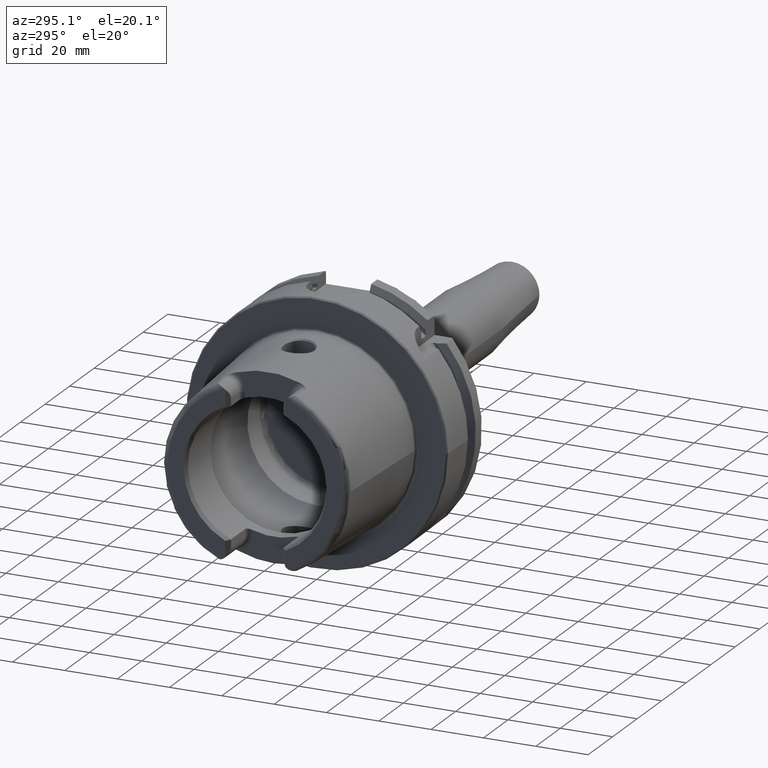
[diagram: clean part render]
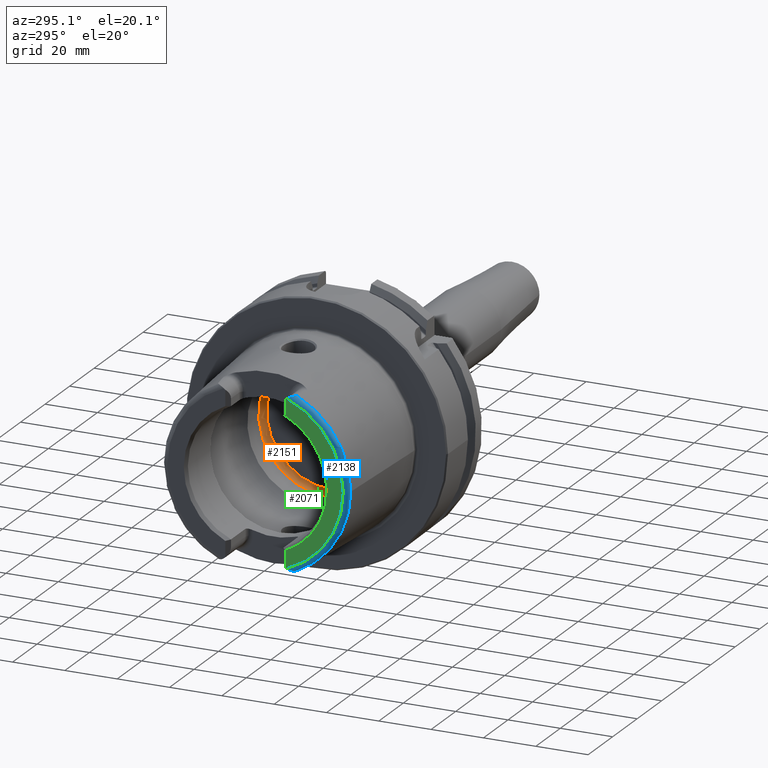
[diagram: same view with three faces highlighted in distinct colors, each labeled with its STEP entity id]
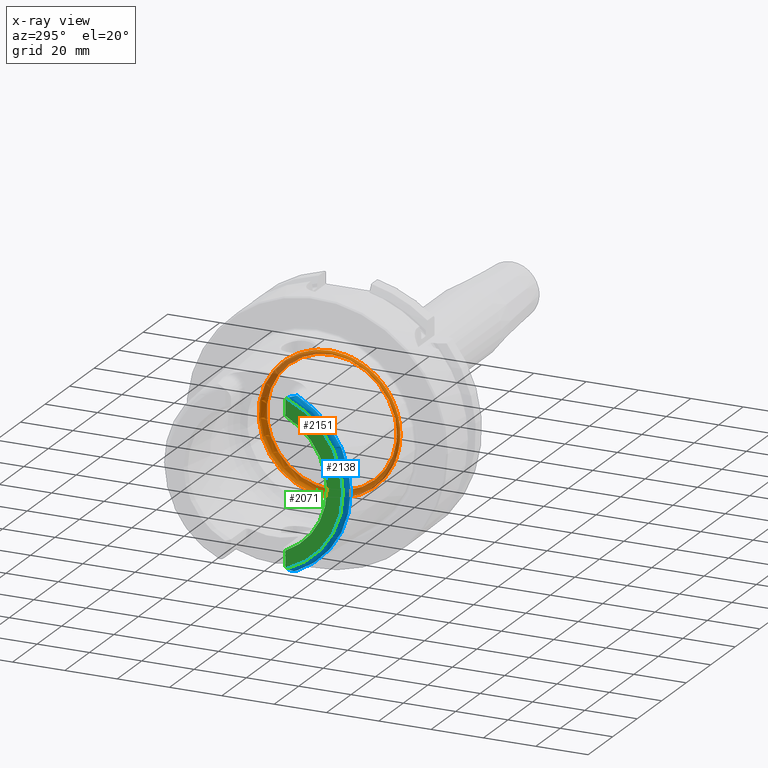
[diagram: x-ray of the same camera — body ghosted, the three highlighted faces saturated]
A machine part, auxiliary view with three faces highlighted in distinct colors.
The next image is the same camera in x-ray (body ghosted, the three faces saturated) — at least one of them is partly hidden behind the body in this view.
Their STEP definitions:

[orange] entity #2151 — the highlighted toroidal blend (fillet) surface has major radius 24.9 mm and minor (blend) radius 2 mm.
#161=TOROIDAL_SURFACE('',#2427,24.9,2.);
#321=FACE_OUTER_BOUND('',#458,.T.);
#458=EDGE_LOOP('',(#1949,#1950,#1951,#1952,#1953));
#812=CIRCLE('',#2426,24.9);
#813=CIRCLE('',#2428,2.);
#814=CIRCLE('',#2429,26.5);
#815=CIRCLE('',#2430,26.5);
#1034=VERTEX_POINT('',#4607);
#1035=VERTEX_POINT('',#4610);
#1036=VERTEX_POINT('',#4612);
#1346=EDGE_CURVE('',#1034,#1034,#812,.T.);
#1347=EDGE_CURVE('',#1034,#1035,#813,.T.);
#1348=EDGE_CURVE('',#1035,#1036,#814,.T.);
#1349=EDGE_CURVE('',#1036,#1035,#815,.T.);
#1949=ORIENTED_EDGE('',*,*,#1346,.F.);
#1950=ORIENTED_EDGE('',*,*,#1347,.T.);
#1951=ORIENTED_EDGE('',*,*,#1348,.T.);
#1952=ORIENTED_EDGE('',*,*,#1349,.T.);
#1953=ORIENTED_EDGE('',*,*,#1347,.F.);
#2151=ADVANCED_FACE('',(#321),#161,.F.);
#2426=AXIS2_PLACEMENT_3D('',#4608,#3038,#3039);
#2427=AXIS2_PLACEMENT_3D('',#4609,#3040,#3041);
#2428=AXIS2_PLACEMENT_3D('',#4611,#3042,#3043);
#2429=AXIS2_PLACEMENT_3D('',#4613,#3044,#3045);
#2430=AXIS2_PLACEMENT_3D('',#4614,#3046,#3047);
#3038=DIRECTION('center_axis',(-1.,0.,0.));
#3039=DIRECTION('ref_axis',(0.,0.,1.));
#3040=DIRECTION('center_axis',(-1.,0.,0.));
#3041=DIRECTION('ref_axis',(0.,0.,1.));
#3042=DIRECTION('center_axis',(0.,1.,-1.22464679914735E-16));
#3043=DIRECTION('ref_axis',(0.,-1.22464679914735E-16,-1.));
#3044=DIRECTION('center_axis',(-1.,0.,0.));
#3045=DIRECTION('ref_axis',(0.,0.,1.));
#3046=DIRECTION('center_axis',(-1.,0.,0.));
#3047=DIRECTION('ref_axis',(0.,0.,1.));
#4607=CARTESIAN_POINT('',(12.5,-3.04937052987691E-15,-24.9));
#4608=CARTESIAN_POINT('Origin',(12.5,0.,0.));
#4609=CARTESIAN_POINT('Origin',(10.5,0.,0.));
#4610=CARTESIAN_POINT('',(9.3,-3.24531401774049E-15,-26.5));
#4611=CARTESIAN_POINT('Origin',(10.5,-3.04937052987691E-15,-24.9));
#4612=CARTESIAN_POINT('',(9.3,-26.5,3.24531401774049E-15));
#4613=CARTESIAN_POINT('Origin',(9.3,0.,0.));
#4614=CARTESIAN_POINT('Origin',(9.3,0.,0.));

[blue] entity #2138 — the highlighted toroidal blend (fillet) surface has major radius 33.6002 mm and minor (blend) radius 2 mm.
#33=B_SPLINE_CURVE_WITH_KNOTS('',3,(#3332,#3333,#3334,#3335,#3336,#3337,
#3338,#3339,#3340,#3341,#3342,#3343),.UNSPECIFIED.,.F.,.F.,(4,2,2,2,2,4),
(-0.744571126726518,-0.701342830888641,-0.656522678464628,-0.531122919946975,
-0.406784567241786,-0.320835419118986),.UNSPECIFIED.);
#84=B_SPLINE_CURVE_WITH_KNOTS('',3,(#4559,#4560,#4561,#4562,#4563,#4564,
#4565,#4566,#4567,#4568,#4569,#4570),.UNSPECIFIED.,.F.,.F.,(4,2,2,2,2,4),
(-0.330531435638092,-0.267908000768824,-0.159978118105095,-0.0786368985358016,
-0.0319888850382436,0.),.UNSPECIFIED.);
#158=TOROIDAL_SURFACE('',#2401,33.6001839277785,2.);
#308=FACE_OUTER_BOUND('',#442,.T.);
#442=EDGE_LOOP('',(#1882,#1883,#1884,#1885,#1886));
#733=CIRCLE('',#2267,33.6001839277785);
#739=CIRCLE('',#2283,35.5976786130245);
#743=CIRCLE('',#2287,35.5976786130245);
#892=VERTEX_POINT('',#3313);
#893=VERTEX_POINT('',#3315);
#898=VERTEX_POINT('',#3331);
#913=VERTEX_POINT('',#3550);
#914=VERTEX_POINT('',#3552);
#1124=EDGE_CURVE('',#893,#892,#733,.T.);
#1132=EDGE_CURVE('',#898,#893,#33,.T.);
#1152=EDGE_CURVE('',#913,#914,#739,.T.);
#1165=EDGE_CURVE('',#898,#913,#743,.T.);
#1329=EDGE_CURVE('',#892,#914,#84,.T.);
#1882=ORIENTED_EDGE('',*,*,#1132,.T.);
#1883=ORIENTED_EDGE('',*,*,#1124,.T.);
#1884=ORIENTED_EDGE('',*,*,#1329,.T.);
#1885=ORIENTED_EDGE('',*,*,#1152,.F.);
#1886=ORIENTED_EDGE('',*,*,#1165,.F.);
#2138=ADVANCED_FACE('',(#308),#158,.T.);
#2267=AXIS2_PLACEMENT_3D('',#3316,#2646,#2647);
#2283=AXIS2_PLACEMENT_3D('',#3553,#2690,#2691);
#2287=AXIS2_PLACEMENT_3D('',#3680,#2698,#2699);
#2401=AXIS2_PLACEMENT_3D('',#4558,#2984,#2985);
#2646=DIRECTION('center_axis',(1.,0.,0.));
#2647=DIRECTION('ref_axis',(0.,0.,-1.));
#2690=DIRECTION('center_axis',(1.,0.,0.));
#2691=DIRECTION('ref_axis',(0.,0.,-1.));
#2698=DIRECTION('center_axis',(1.,0.,0.));
#2699=DIRECTION('ref_axis',(0.,0.,-1.));
#2984=DIRECTION('center_axis',(1.,0.,0.));
#2985=DIRECTION('ref_axis',(0.,0.,-1.));
#3313=CARTESIAN_POINT('',(-50.,-12.0743049948301,-31.355757348091));
#3315=CARTESIAN_POINT('',(-50.,-12.0743049948301,31.355757348091));
#3316=CARTESIAN_POINT('Origin',(-50.,0.,0.));
#3331=CARTESIAN_POINT('',(-48.1000748840304,-15.0787152148571,32.2463497175327));
#3332=CARTESIAN_POINT('Ctrl Pts',(-48.1000748840304,-15.0787152148571,32.2463497175327));
#3333=CARTESIAN_POINT('Ctrl Pts',(-48.2106037175751,-15.0644627457708,32.2469012894916));
#3334=CARTESIAN_POINT('Ctrl Pts',(-48.3154292138326,-15.0273539899824,32.2483385926998));
#3335=CARTESIAN_POINT('Ctrl Pts',(-48.5163157198425,-14.9224481921473,32.2501843906849));
#3336=CARTESIAN_POINT('Ctrl Pts',(-48.6121978837474,-14.8534224082598,32.2504380645671));
#3337=CARTESIAN_POINT('Ctrl Pts',(-48.945264184207,-14.5689466462258,32.2439376039327));
#3338=CARTESIAN_POINT('Ctrl Pts',(-49.1880723127852,-14.2607780319834,32.2227822574558));
#3339=CARTESIAN_POINT('Ctrl Pts',(-49.6101150709732,-13.5547183211213,32.0774653757186));
#3340=CARTESIAN_POINT('Ctrl Pts',(-49.7793847368059,-13.1765954395989,31.957165019384));
#3341=CARTESIAN_POINT('Ctrl Pts',(-49.9574602860506,-12.5580264083439,31.6658578550016));
#3342=CARTESIAN_POINT('Ctrl Pts',(-50.,-12.3091419271059,31.5216553492714));
#3343=CARTESIAN_POINT('Ctrl Pts',(-50.,-12.0743049948301,31.355757348091));
#3550=CARTESIAN_POINT('',(-48.1000748840304,-35.5976786130245,-4.35945831705167E-15));
#3552=CARTESIAN_POINT('',(-48.1000748840304,-15.0787152148571,-32.2463497175327));
#3553=CARTESIAN_POINT('Origin',(-48.1000748840304,0.,0.));
#3680=CARTESIAN_POINT('Origin',(-48.1000748840304,0.,0.));
#4558=CARTESIAN_POINT('Origin',(-48.,0.,0.));
#4559=CARTESIAN_POINT('Ctrl Pts',(-50.,-12.0743049948301,-31.355757348091));
#4560=CARTESIAN_POINT('Ctrl Pts',(-50.,-12.2858381230511,-31.5051926299064));
#4561=CARTESIAN_POINT('Ctrl Pts',(-49.9653696826563,-12.5170331398669,-31.6430588255455));
#4562=CARTESIAN_POINT('Ctrl Pts',(-49.7810065498998,-13.1911222585011,-31.9692156023964));
#4563=CARTESIAN_POINT('Ctrl Pts',(-49.5806767805337,-13.6194685503754,-32.0969374367804));
#4564=CARTESIAN_POINT('Ctrl Pts',(-49.1716377200869,-14.2730899346346,-32.2192774131036));
#4565=CARTESIAN_POINT('Ctrl Pts',(-48.9774936618895,-14.5201969661755,-32.2395201073332));
#4566=CARTESIAN_POINT('Ctrl Pts',(-48.6675943633755,-14.8125911006811,-32.2505512851489));
#4567=CARTESIAN_POINT('Ctrl Pts',(-48.5398374959924,-14.912197389574,-32.2504544601106));
#4568=CARTESIAN_POINT('Ctrl Pts',(-48.3063803700173,-15.0305209025154,-32.2482139663407));
#4569=CARTESIAN_POINT('Ctrl Pts',(-48.2058276135777,-15.0650786147019,-32.2468774553032));
#4570=CARTESIAN_POINT('Ctrl Pts',(-48.1000748840304,-15.0787152148571,-32.2463497175327));

[green] entity #2071 — the highlighted planar face has unit normal (-1, 0, 0).
#107=PLANE('',#2265);
#241=FACE_OUTER_BOUND('',#372,.T.);
#372=EDGE_LOOP('',(#1498,#1499,#1500,#1501,#1502,#1503));
#502=LINE('',#3300,#610);
#504=LINE('',#3319,#612);
#610=VECTOR('',#2628,10.);
#612=VECTOR('',#2650,10.);
#729=CIRCLE('',#2261,27.3660254037844);
#732=CIRCLE('',#2266,4.88);
#733=CIRCLE('',#2267,33.6001839277785);
#734=CIRCLE('',#2268,4.88);
#886=VERTEX_POINT('',#3297);
#887=VERTEX_POINT('',#3299);
#889=VERTEX_POINT('',#3305);
#892=VERTEX_POINT('',#3313);
#893=VERTEX_POINT('',#3315);
#894=VERTEX_POINT('',#3317);
#1116=EDGE_CURVE('',#886,#887,#502,.T.);
#1119=EDGE_CURVE('',#887,#889,#729,.T.);
#1123=EDGE_CURVE('',#886,#892,#732,.T.);
#1124=EDGE_CURVE('',#893,#892,#733,.T.);
#1125=EDGE_CURVE('',#893,#894,#734,.T.);
#1126=EDGE_CURVE('',#889,#894,#504,.T.);
#1498=ORIENTED_EDGE('',*,*,#1116,.F.);
#1499=ORIENTED_EDGE('',*,*,#1123,.T.);
#1500=ORIENTED_EDGE('',*,*,#1124,.F.);
#1501=ORIENTED_EDGE('',*,*,#1125,.T.);
#1502=ORIENTED_EDGE('',*,*,#1126,.F.);
#1503=ORIENTED_EDGE('',*,*,#1119,.F.);
#2071=ADVANCED_FACE('',(#241),#107,.T.);
#2261=AXIS2_PLACEMENT_3D('',#3306,#2634,#2635);
#2265=AXIS2_PLACEMENT_3D('',#3312,#2642,#2643);
#2266=AXIS2_PLACEMENT_3D('',#3314,#2644,#2645);
#2267=AXIS2_PLACEMENT_3D('',#3316,#2646,#2647);
#2268=AXIS2_PLACEMENT_3D('',#3318,#2648,#2649);
#2628=DIRECTION('',(0.,0.,1.));
#2634=DIRECTION('center_axis',(-1.,0.,0.));
#2635=DIRECTION('ref_axis',(0.,-1.,0.));
#2642=DIRECTION('center_axis',(-1.,0.,0.));
#2643=DIRECTION('ref_axis',(0.,0.,1.));
#2644=DIRECTION('center_axis',(-1.,0.,0.));
#2645=DIRECTION('ref_axis',(0.,-1.,0.));
#2646=DIRECTION('center_axis',(1.,0.,0.));
#2647=DIRECTION('ref_axis',(0.,0.,-1.));
#2648=DIRECTION('center_axis',(-1.,0.,0.));
#2649=DIRECTION('ref_axis',(0.,0.477884921181369,-0.878422450821629));
#2650=DIRECTION('',(0.,0.,1.));
#3297=CARTESIAN_POINT('',(-50.,-11.51,-30.8899431813596));
#3299=CARTESIAN_POINT('',(-50.,-11.51,-24.8277918148307));
#3300=CARTESIAN_POINT('',(-50.,-11.51,-13.685));
#3305=CARTESIAN_POINT('',(-50.,-11.51,24.8277918148307));
#3306=CARTESIAN_POINT('Origin',(-50.,0.,0.));
#3312=CARTESIAN_POINT('Origin',(-50.,33.6001839277785,0.));
#3313=CARTESIAN_POINT('',(-50.,-12.0743049948301,-31.355757348091));
#3314=CARTESIAN_POINT('Origin',(-50.,-14.89,-27.37));
#3315=CARTESIAN_POINT('',(-50.,-12.0743049948301,31.355757348091));
#3316=CARTESIAN_POINT('Origin',(-50.,0.,0.));
#3317=CARTESIAN_POINT('',(-50.,-11.51,30.8899431813596));
#3318=CARTESIAN_POINT('Origin',(-50.,-14.89,27.37));
#3319=CARTESIAN_POINT('',(-50.,-11.51,9.));